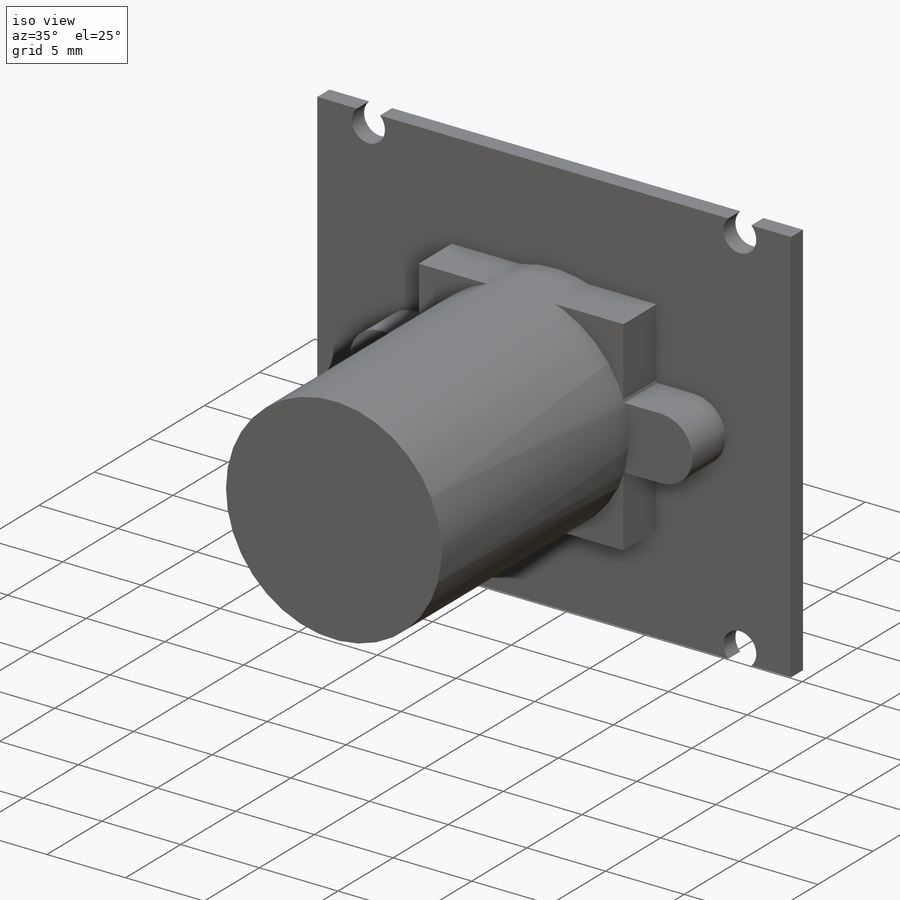
[diagram: iso view]
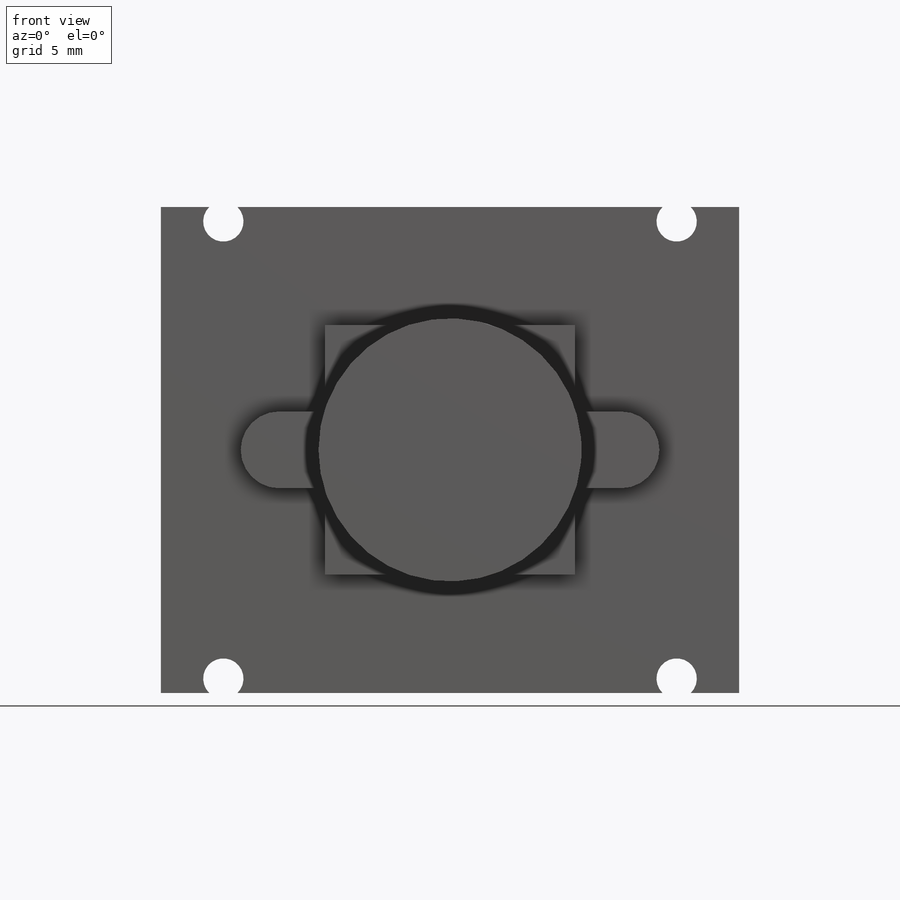
[diagram: front view]
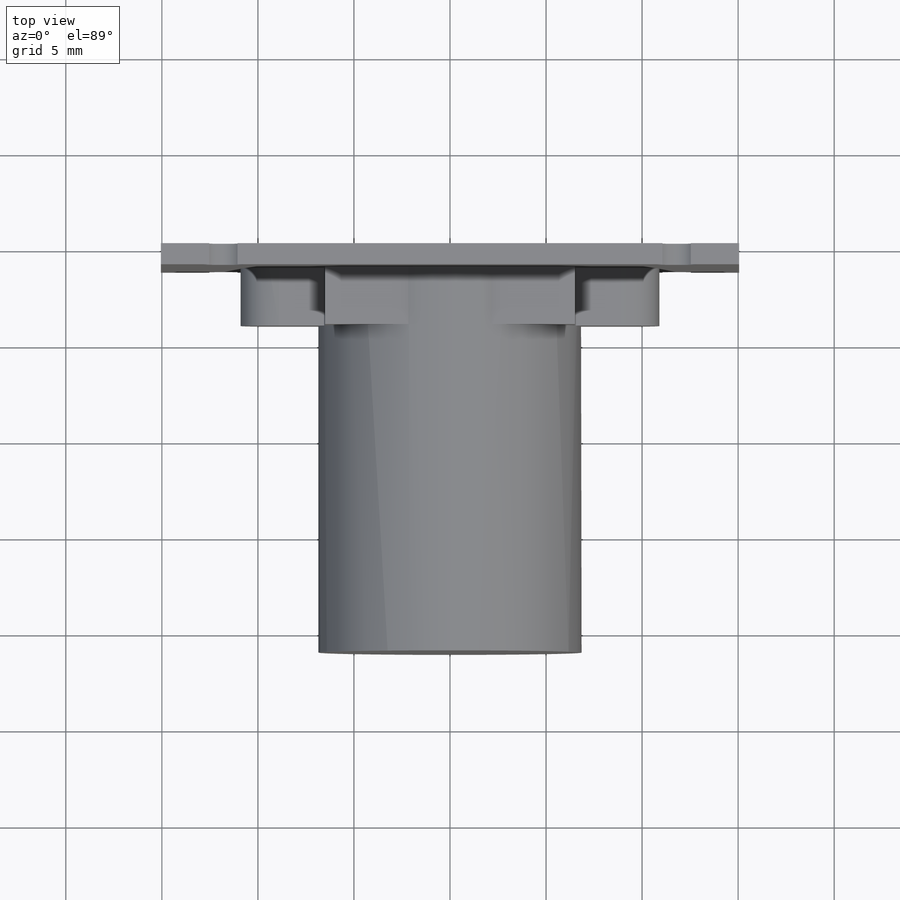
[diagram: top view]
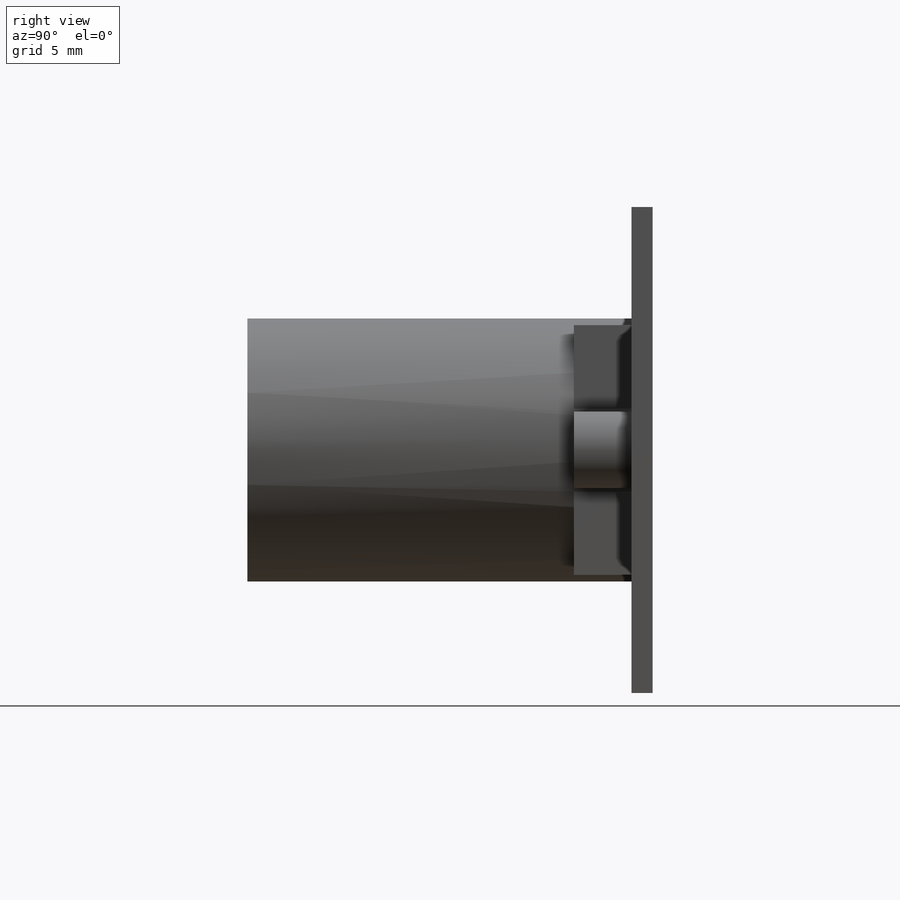
[diagram: right view]
SOLIDWORKS PART (.sldprt)
format: sldprt  version: not decoded by parser v0  size: 227,840 bytes
history: native  units: mm
features: sketch x5, extrude x4, material x1, cut_extrude x1 (+12 scaffold rows collapsed)
feature tree (23):
  scaffold x12  (default folders/planes/origin — collapsed)
  material  "Material <not specified>"
  sketch  "Sketch1"  dims[D1=25.3mm D2=30.1mm]
  extrude  "Boss-Extrude1"  Depth=1.1mm
  sketch  "Sketch2"  dims[D1=2.1mm D2=2.1mm D3=2.1mm D4=2.1mm D5=11.8mm D6=11.8mm D7=11.8mm D8=11.8mm D9=11.9mm D10=11.9mm D11=11.9mm D12=11.9mm]
  cut_extrude  "Cut-Extrude1"  [1 undecoded]
  sketch  "Sketch3"  dims[D1=13.0mm D2=13.0mm]
  extrude  "Boss-Extrude2"  Depth=3mm
  sketch  "Sketch4"  dims[c1.D1=4.0mm c1.D2=4.0mm c1.D3=17.8mm c1.D4=8.9mm c2.D3=8.9mm]
  extrude  "Boss-Extrude3"  Depth=3mm
  sketch  "Sketch5"  dims[D1=13.7mm]
  extrude  "Boss-Extrude4"  Depth=20mm
decode coverage: 9 of 10 modeling features carry decoded parameters
note: 1 parameter value undecoded
note: suppression state not decoded; provenance and decode notes live in map.json
